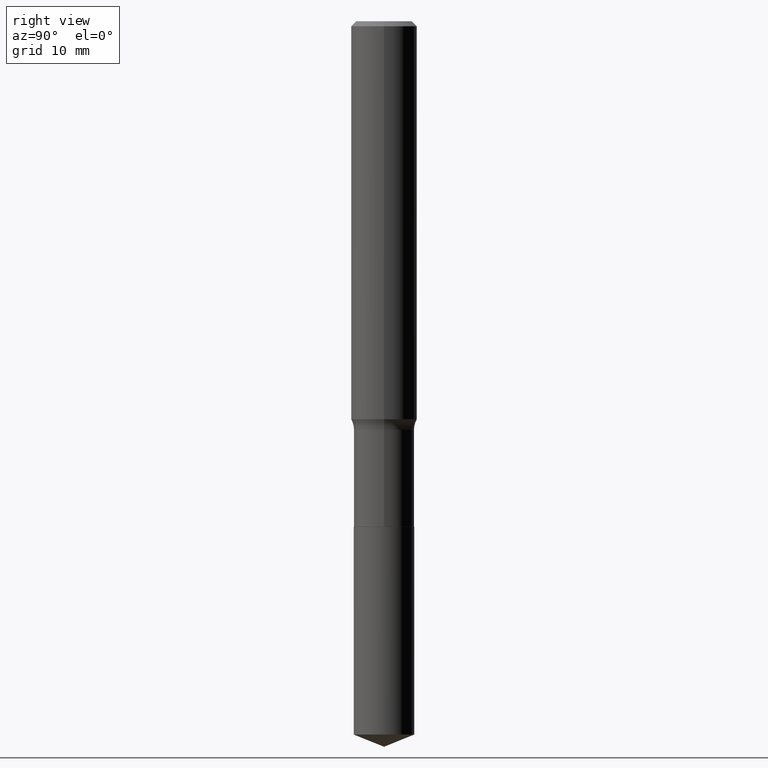
[diagram: clean part render]
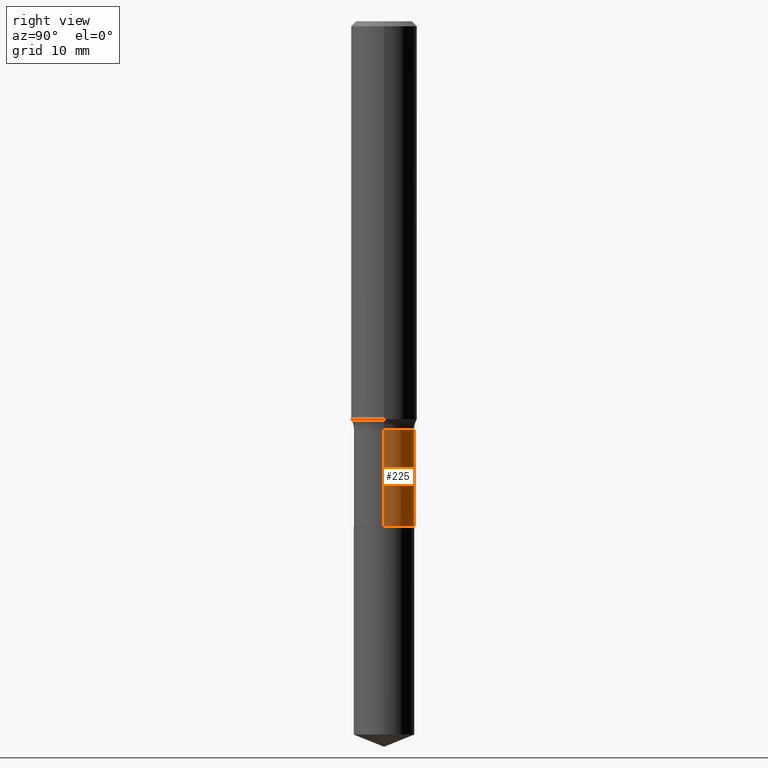
[diagram: same view with one face highlighted and labeled with its STEP entity id]
A machine part, right view. The second image highlights one B-rep face of the part: STEP entity #225.
In plain terms, the highlighted cylindrical surface (edge-blend (fillet) strip) has radius 2.7495 mm, axis along (-0, 0, 1).
Its self-contained STEP definition (entity closure, byte-faithful):
#16 = CYLINDRICAL_SURFACE ( 'NONE', #237, 0.1082499999999999851 ) ;
#21 = ORIENTED_EDGE ( 'NONE', *, *, #178, .T. ) ;
#27 = ORIENTED_EDGE ( 'NONE', *, *, #53, .F. ) ;
#35 = VERTEX_POINT ( 'NONE', #446 ) ;
#39 = DIRECTION ( 'NONE',  ( -2.445468806185136877E-29, 3.491481338843145188E-15, 1.000000000000000000 ) ) ;
#43 = DIRECTION ( 'NONE',  ( -2.445468806185136877E-29, 3.491481338843145188E-15, 1.000000000000000000 ) ) ;
#47 = CIRCLE ( 'NONE', #432, 0.1082499999999999990 ) ;
#49 = CARTESIAN_POINT ( 'NONE',  ( -0.1082499999999999851, 7.691625114603083455E-16, -5.324747235200934608E-30 ) ) ;
#53 = EDGE_CURVE ( 'NONE', #90, #360, #67, .T. ) ;
#59 = AXIS2_PLACEMENT_3D ( 'NONE', #327, #404, #368 ) ;
#67 = LINE ( 'NONE', #181, #389 ) ;
#83 = DIRECTION ( 'NONE',  ( 1.000000000000000000, -6.982962677686267499E-15, 0.000000000000000000 ) ) ;
#90 = VERTEX_POINT ( 'NONE', #483 ) ;
#109 = CARTESIAN_POINT ( 'NONE',  ( 0.1082499999999999712, -5.865688649256481550E-15, -1.463499999999999801 ) ) ;
#155 = DIRECTION ( 'NONE',  ( -2.445468806185136597E-29, 3.491481338843145583E-15, 1.000000000000000000 ) ) ;
#164 = DIRECTION ( 'NONE',  ( 1.000000000000000000, -6.982962677686266711E-15, 4.876176775795935232E-29 ) ) ;
#175 = FACE_OUTER_BOUND ( 'NONE', #324, .T. ) ;
#178 = EDGE_CURVE ( 'NONE', #90, #411, #47, .T. ) ;
#181 = CARTESIAN_POINT ( 'NONE',  ( 0.1082499999999999851, -7.559057098595382610E-16, 5.278461359799099291E-30 ) ) ;
#191 = CIRCLE ( 'NONE', #59, 0.1082499999999999712 ) ;
#208 = VECTOR ( 'NONE', #43, 39.37007874015748143 ) ;
#225 = ADVANCED_FACE ( 'NONE', ( #175 ), #16, .T. ) ;
#234 = CARTESIAN_POINT ( 'NONE',  ( 4.427521273598189436E-29, -6.321326963975514491E-15, -1.810499999999999998 ) ) ;
#237 = AXIS2_PLACEMENT_3D ( 'NONE', #251, #465, #164 ) ;
#251 = CARTESIAN_POINT ( 'NONE',  ( 0.000000000000000000, 0.000000000000000000, 0.000000000000000000 ) ) ;
#260 = EDGE_CURVE ( 'NONE', #411, #35, #298, .T. ) ;
#298 = LINE ( 'NONE', #49, #208 ) ;
#324 = EDGE_LOOP ( 'NONE', ( #21, #403, #471, #27 ) ) ;
#327 = CARTESIAN_POINT ( 'NONE',  ( 3.578943597851946643E-29, -5.109782939396942894E-15, -1.463499999999999801 ) ) ;
#357 = EDGE_CURVE ( 'NONE', #360, #35, #191, .T. ) ;
#360 = VERTEX_POINT ( 'NONE', #109 ) ;
#368 = DIRECTION ( 'NONE',  ( 1.000000000000000000, -6.982962677686269077E-15, 0.000000000000000000 ) ) ;
#389 = VECTOR ( 'NONE', #39, 39.37007874015748143 ) ;
#403 = ORIENTED_EDGE ( 'NONE', *, *, #260, .T. ) ;
#404 = DIRECTION ( 'NONE',  ( -2.445468806185136597E-29, 3.491481338843145583E-15, 1.000000000000000000 ) ) ;
#407 = CARTESIAN_POINT ( 'NONE',  ( -0.1082499999999999990, -4.946392440225920150E-15, -1.810499999999999998 ) ) ;
#411 = VERTEX_POINT ( 'NONE', #407 ) ;
#432 = AXIS2_PLACEMENT_3D ( 'NONE', #234, #155, #83 ) ;
#446 = CARTESIAN_POINT ( 'NONE',  ( -0.1082499999999999712, -4.946392440225920150E-15, -1.463499999999999801 ) ) ;
#465 = DIRECTION ( 'NONE',  ( -2.445468806185136597E-29, 3.491481338843145583E-15, 1.000000000000000000 ) ) ;
#471 = ORIENTED_EDGE ( 'NONE', *, *, #357, .F. ) ;
#483 = CARTESIAN_POINT ( 'NONE',  ( 0.1082499999999999990, -7.077232673835053147E-15, -1.810499999999999998 ) ) ;